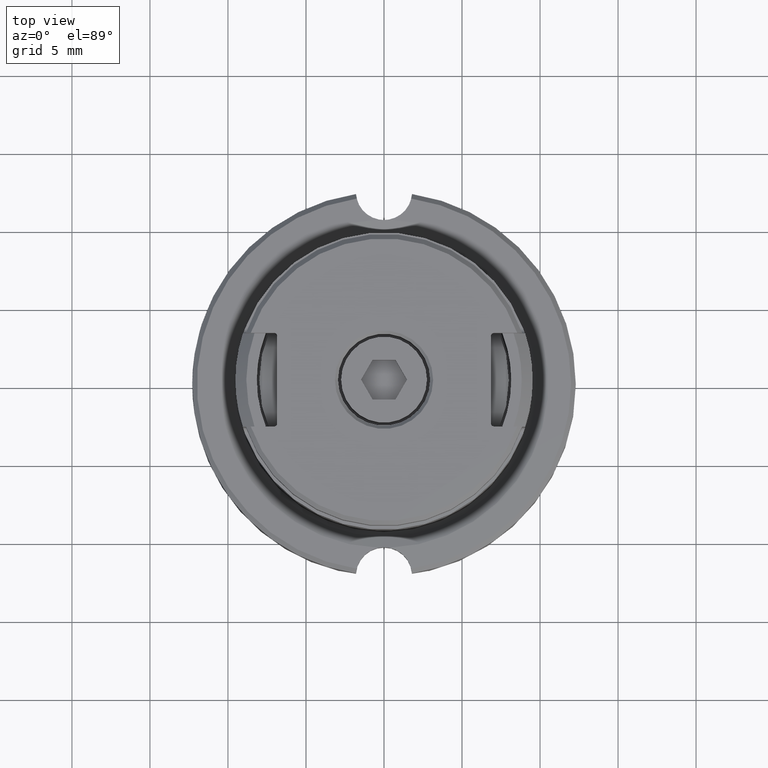
[diagram: clean part render]
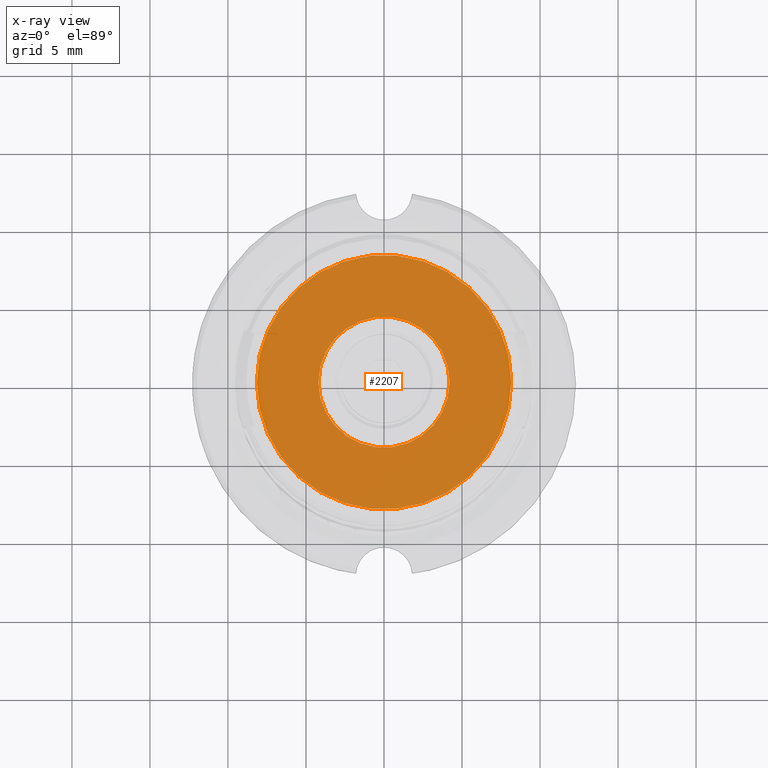
[diagram: x-ray — body ghosted, one internal face saturated and labeled with its STEP entity id]
A machine part, top view, then the same camera in x-ray: the body is ghosted and one INTERNAL B-rep face — a face not visible from any outside direction — is saturated and labeled: STEP entity #2207.
In plain terms, the highlighted planar face has unit normal (0, 0, 1).
Its self-contained STEP definition (entity closure, byte-faithful):
#2207=ADVANCED_FACE('',(#3137,#3138),#2929,.T.);
#2929=PLANE('',#19014);
#3137=FACE_BOUND('',#3911,.T.);
#3138=FACE_BOUND('',#3912,.T.);
#3911=EDGE_LOOP('',(#8682,#8683));
#3912=EDGE_LOOP('',(#8684,#8685));
#4525=CIRCLE('',#19006,4.2);
#4526=CIRCLE('',#19008,4.2);
#4528=CIRCLE('',#19012,8.15);
#4529=CIRCLE('',#19013,8.15);
#8682=ORIENTED_EDGE('',*,*,#13451,.F.);
#8683=ORIENTED_EDGE('',*,*,#13452,.F.);
#8684=ORIENTED_EDGE('',*,*,#13447,.F.);
#8685=ORIENTED_EDGE('',*,*,#13449,.F.);
#11087=VERTEX_POINT('',#28856);
#11088=VERTEX_POINT('',#28858);
#11089=VERTEX_POINT('',#28866);
#11090=VERTEX_POINT('',#28867);
#13447=EDGE_CURVE('',#11087,#11088,#4525,.T.);
#13449=EDGE_CURVE('',#11088,#11087,#4526,.T.);
#13451=EDGE_CURVE('',#11089,#11090,#4528,.T.);
#13452=EDGE_CURVE('',#11090,#11089,#4529,.T.);
#19006=AXIS2_PLACEMENT_3D('',#28857,#23239,#23240);
#19008=AXIS2_PLACEMENT_3D('',#28861,#23244,#23245);
#19012=AXIS2_PLACEMENT_3D('',#28865,#23252,#23253);
#19013=AXIS2_PLACEMENT_3D('',#28868,#23254,#23255);
#19014=AXIS2_PLACEMENT_3D('',#28869,#23256,#23257);
#23239=DIRECTION('',(0.,0.,1.));
#23240=DIRECTION('',(-1.,0.,0.));
#23244=DIRECTION('',(0.,0.,1.));
#23245=DIRECTION('',(1.,0.,0.));
#23252=DIRECTION('',(0.,0.,-1.));
#23253=DIRECTION('',(-1.,0.,0.));
#23254=DIRECTION('',(0.,0.,-1.));
#23255=DIRECTION('',(1.,0.,0.));
#23256=DIRECTION('',(0.,0.,1.));
#23257=DIRECTION('',(1.,0.,0.));
#28856=CARTESIAN_POINT('',(-4.2,0.,5.1));
#28857=CARTESIAN_POINT('',(0.,0.,5.1));
#28858=CARTESIAN_POINT('',(4.2,0.,5.1));
#28861=CARTESIAN_POINT('',(0.,0.,5.1));
#28865=CARTESIAN_POINT('',(0.,0.,5.1));
#28866=CARTESIAN_POINT('',(-8.15,0.,5.1));
#28867=CARTESIAN_POINT('',(8.15,0.,5.1));
#28868=CARTESIAN_POINT('',(0.,0.,5.1));
#28869=CARTESIAN_POINT('',(0.,0.,5.1));